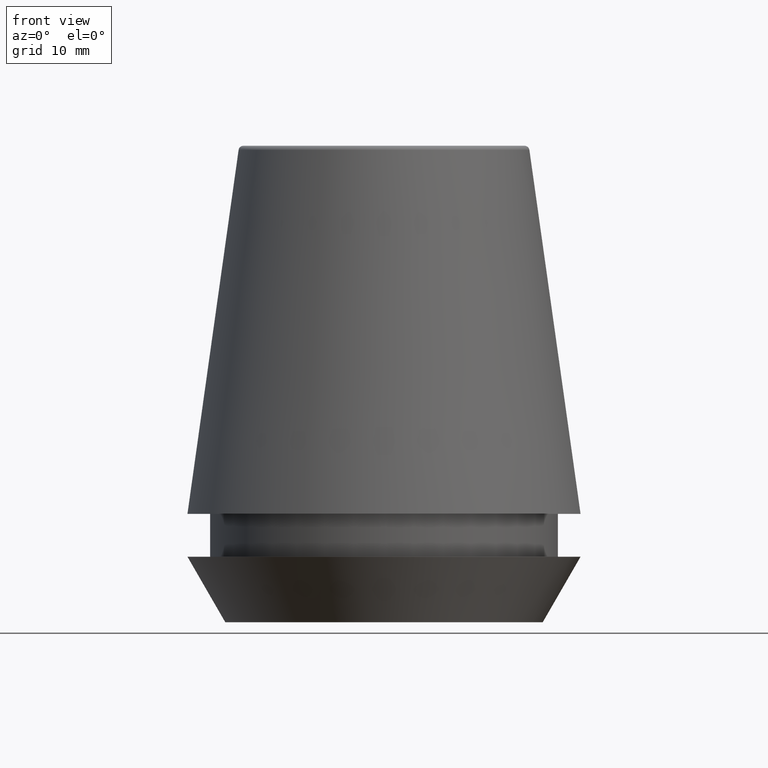
[diagram: clean part render]
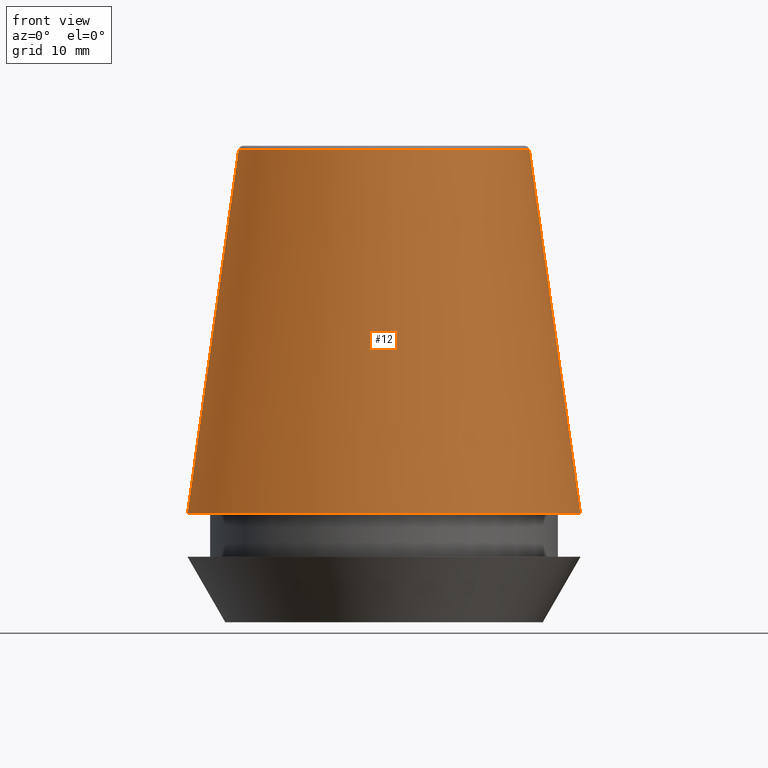
[diagram: same view with one face highlighted and labeled with its STEP entity id]
A machine part, front view. The second image highlights one B-rep face of the part: STEP entity #12.
In plain terms, the highlighted conical surface has half-angle 8 deg.
Its self-contained STEP definition (entity closure, byte-faithful):
#4 = DIRECTION ( 'NONE',  ( 1.000000000000000000, 0.0000000000000000000, 0.0000000000000000000 ) ) ;
#6 = DIRECTION ( 'NONE',  ( -1.000000000000000000, 0.0000000000000000000, 0.0000000000000000000 ) ) ;
#12 = ADVANCED_FACE ( 'NONE', ( #13 ), #338, .T. ) ;
#13 = FACE_OUTER_BOUND ( 'NONE', #289, .T. ) ;
#20 = ORIENTED_EDGE ( 'NONE', *, *, #64, .T. ) ;
#27 = AXIS2_PLACEMENT_3D ( 'NONE', #286, #107, #6 ) ;
#55 = EDGE_CURVE ( 'NONE', #315, #387, #287, .T. ) ;
#58 = CARTESIAN_POINT ( 'NONE',  ( 16.50032537154048700, 2.020707065114692300E-015, 9.099999999999997900 ) ) ;
#64 = EDGE_CURVE ( 'NONE', #76, #273, #360, .T. ) ;
#76 = VERTEX_POINT ( 'NONE', #331 ) ;
#81 = LINE ( 'NONE', #122, #376 ) ;
#90 = AXIS2_PLACEMENT_3D ( 'NONE', #264, #205, #350 ) ;
#91 = EDGE_CURVE ( 'NONE', #387, #273, #81, .T. ) ;
#107 = DIRECTION ( 'NONE',  ( 0.0000000000000000000, 0.0000000000000000000, -1.000000000000000000 ) ) ;
#111 = CARTESIAN_POINT ( 'NONE',  ( -12.20600611160694300, 0.0000000000000000000, 39.65566924038402900 ) ) ;
#122 = CARTESIAN_POINT ( 'NONE',  ( 16.50032537154048700, 2.020707065114692300E-015, 9.099999999999997900 ) ) ;
#142 = CARTESIAN_POINT ( 'NONE',  ( 0.0000000000000000000, 0.0000000000000000000, 9.099999999999997900 ) ) ;
#173 = LINE ( 'NONE', #211, #281 ) ;
#176 = CARTESIAN_POINT ( 'NONE',  ( 12.20600611160694300, 1.757755848304969800E-015, 39.65566924038402900 ) ) ;
#188 = DIRECTION ( 'NONE',  ( 0.1391731009600586900, 1.704378926181473100E-017, -0.9902680687415712500 ) ) ;
#195 = ORIENTED_EDGE ( 'NONE', *, *, #55, .F. ) ;
#205 = DIRECTION ( 'NONE',  ( -0.0000000000000000000, -0.0000000000000000000, 1.000000000000000000 ) ) ;
#211 = CARTESIAN_POINT ( 'NONE',  ( -16.50032537154048700, 0.0000000000000000000, 9.099999999999997900 ) ) ;
#260 = DIRECTION ( 'NONE',  ( -0.1391731009600586900, 0.0000000000000000000, -0.9902680687415712500 ) ) ;
#264 = CARTESIAN_POINT ( 'NONE',  ( 0.0000000000000000000, 0.0000000000000000000, 39.65566924038402900 ) ) ;
#273 = VERTEX_POINT ( 'NONE', #58 ) ;
#281 = VECTOR ( 'NONE', #260, 1000.000000000000000 ) ;
#286 = CARTESIAN_POINT ( 'NONE',  ( 0.0000000000000000000, 0.0000000000000000000, 9.099999999999997900 ) ) ;
#287 = CIRCLE ( 'NONE', #90, 12.20600611160694300 ) ;
#289 = EDGE_LOOP ( 'NONE', ( #366, #195, #347, #20 ) ) ;
#293 = DIRECTION ( 'NONE',  ( -0.0000000000000000000, -0.0000000000000000000, 1.000000000000000000 ) ) ;
#315 = VERTEX_POINT ( 'NONE', #111 ) ;
#331 = CARTESIAN_POINT ( 'NONE',  ( -16.50032537154048700, 0.0000000000000000000, 9.099999999999997900 ) ) ;
#338 = CONICAL_SURFACE ( 'NONE', #27, 16.50032537154048700, 0.1396263401595395900 ) ;
#347 = ORIENTED_EDGE ( 'NONE', *, *, #377, .T. ) ;
#350 = DIRECTION ( 'NONE',  ( 1.000000000000000000, 0.0000000000000000000, 0.0000000000000000000 ) ) ;
#360 = CIRCLE ( 'NONE', #367, 16.50032537154048700 ) ;
#366 = ORIENTED_EDGE ( 'NONE', *, *, #91, .F. ) ;
#367 = AXIS2_PLACEMENT_3D ( 'NONE', #142, #293, #4 ) ;
#376 = VECTOR ( 'NONE', #188, 1000.000000000000000 ) ;
#377 = EDGE_CURVE ( 'NONE', #315, #76, #173, .T. ) ;
#387 = VERTEX_POINT ( 'NONE', #176 ) ;